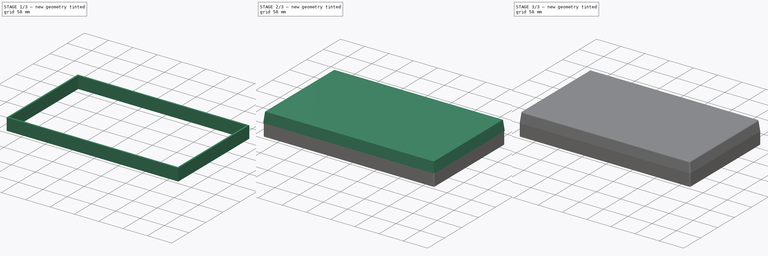
[diagram: build sequence overview — one tinted view per stage of 3, left to right]
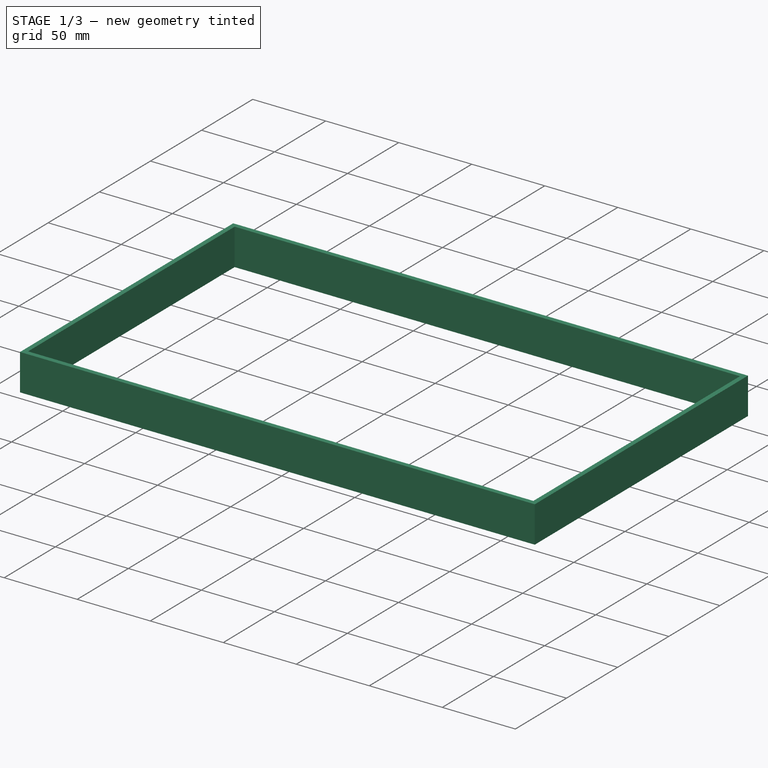
[diagram: stage 1 of 3 — iso view after this stage's code; geometry added in this stage tinted green]
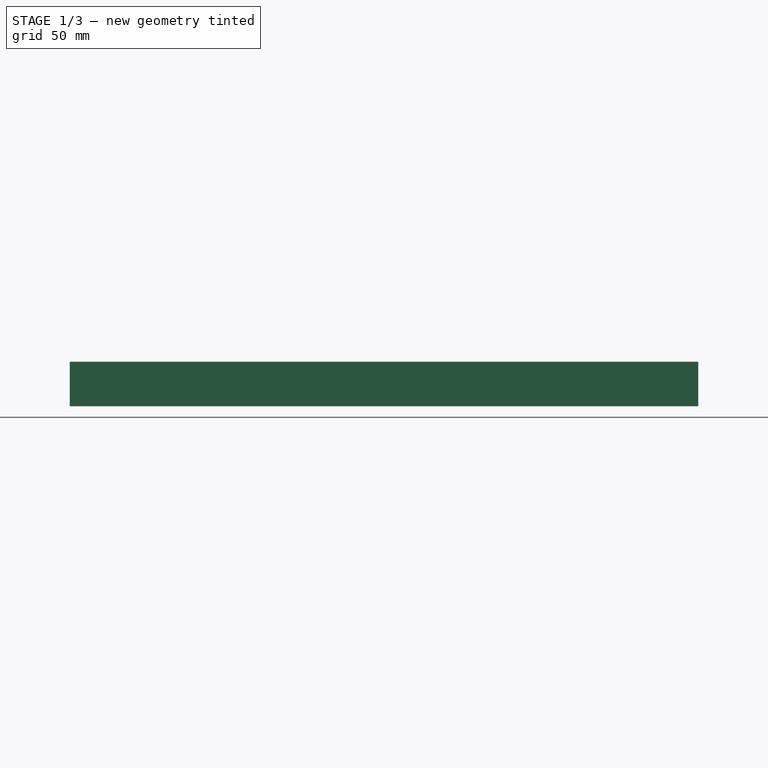
[diagram: stage 1 of 3 — front view after this stage's code; geometry added in this stage tinted green]
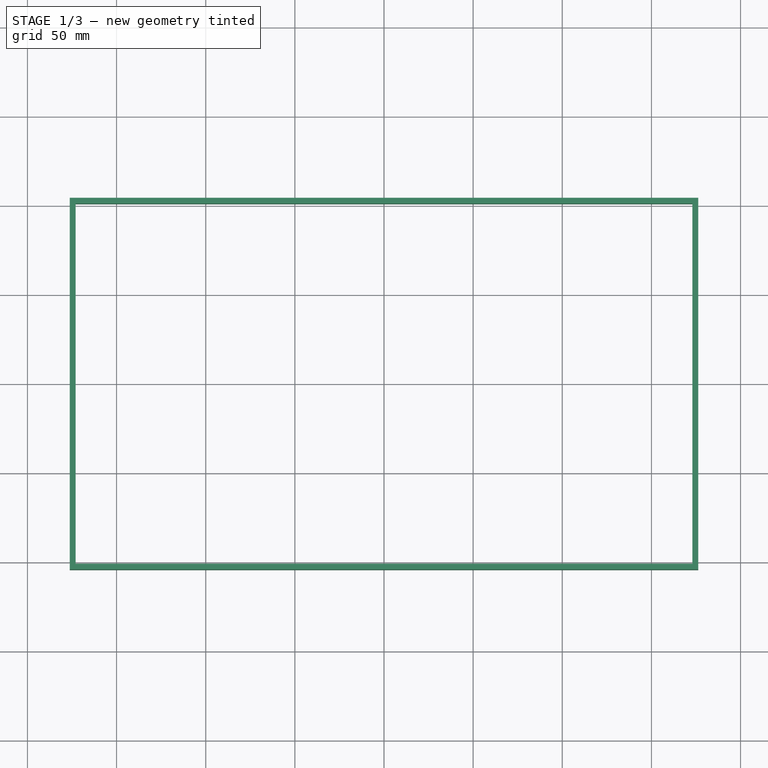
[diagram: stage 1 of 3 — top view after this stage's code; geometry added in this stage tinted green]
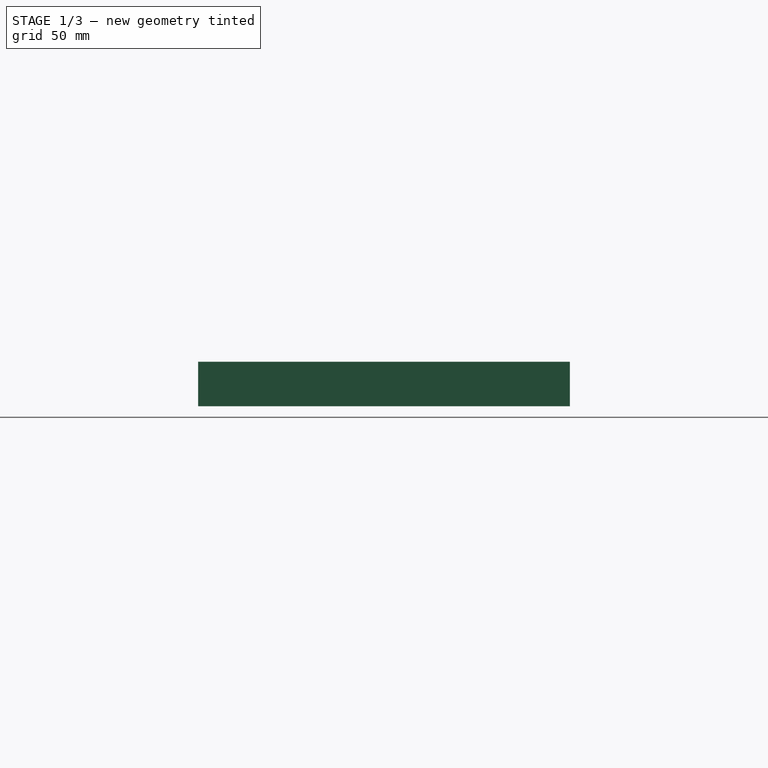
[diagram: stage 1 of 3 — right view after this stage's code; geometry added in this stage tinted green]
FCSTD DOCUMENT  (FreeCAD 0.21R33771 (Git))
Label: CaseTopNew
License: All rights reserved
LicenseURL: https://en.wikipedia.org/wiki/All_rights_reserved
objects: Sketcher::SketchObject×4, PartDesign::Fillet×2, PartDesign::Body×2, Part::Feature×1, PartDesign::FeatureBase×1, PartDesign::Pad×1, PartDesign::AdditiveLoft×1, PartDesign::Thickness×1, PartDesign::CoordinateSystem×1, App::Part×1
note: 19 computed .brp shape members not serialized (recipe doc carries the construction recipe); baked Part::Feature solids carry a one-line shape summary decoded from their .brp

FEATURE [Part::Feature] Part__Feature  label="StringerPads"
  shape: bbox 352.8 x 208.8 x 13 mm, 115 faces (baked)
FEATURE [PartDesign::FeatureBase] BaseFeature
  BaseFeature = -> Part__Feature
FEATURE [Sketcher::SketchObject] Sketch
  AttachmentOffset = pos=(0,0,6) rot=(0,0,1;0rad)
  ExternalGeometry = -> [BaseFeature]
  FullyConstrained = true
  MapMode = 5
  Placement = pos=(0,0,6) rot=(0,0,1;0rad)
  sketch-geometry (10):
    g0: LineSegment StartX=173 StartY=-101 StartZ=0 EndX=173 EndY=101 EndZ=0
    g1: LineSegment StartX=173 StartY=101 StartZ=0 EndX=-173 EndY=101 EndZ=0
    g2: LineSegment StartX=-173 StartY=101 StartZ=0 EndX=-173 EndY=-101 EndZ=0
    g3: LineSegment StartX=-173 StartY=-101 StartZ=0 EndX=173 EndY=-101 EndZ=0
    g4: GeomPoint X=0 Y=0 Z=0
    g5: LineSegment StartX=176.231 StartY=-104.231 StartZ=0 EndX=176.231 EndY=104.231 EndZ=0
    g6: LineSegment StartX=176.231 StartY=104.231 StartZ=0 EndX=-176.231 EndY=104.231 EndZ=0
    g7: LineSegment StartX=-176.231 StartY=104.231 StartZ=0 EndX=-176.231 EndY=-104.231 EndZ=0
    g8: LineSegment StartX=-176.231 StartY=-104.231 StartZ=0 EndX=176.231 EndY=-104.231 EndZ=0
    g9: GeomPoint X=0 Y=0 Z=0
  constraints (23):
    c: Coincident(g0,g1)
    c: Coincident(g1,g2)
    c: Coincident(g2,g3)
    c: Coincident(g3,g0)
    c: Horizontal(g1)
    c: Horizontal(g3)
    c: Vertical(g0)
    c: Vertical(g2)
    c: Symmetric(g1,g0,g4)
    c: Coincident(g4,g-1)
    c: Coincident(g1,g-5)
    c: Coincident(g5,g6)
    c: Coincident(g6,g7)
    c: Coincident(g7,g8)
    c: Coincident(g8,g5)
    c: Horizontal(g6)
    c: Horizontal(g8)
    c: Vertical(g5)
    c: Vertical(g7)
    c: Symmetric(g6,g5,g9)
    c: Coincident(g9,g4)
    c: PointOnObject(g-3,g6)
    c: PointOnObject(g-10,g7)
FEATURE [PartDesign::Pad] Pad
  Direction = (0,0,1)
  Length = 25
  Length2 = 10
  Placement = pos=(0,0,6) rot=(0,0,1;0rad)
  Profile = -> Sketch
  ReferenceAxis = -> Sketch [N_Axis]
  Refine = true
  Type = 0
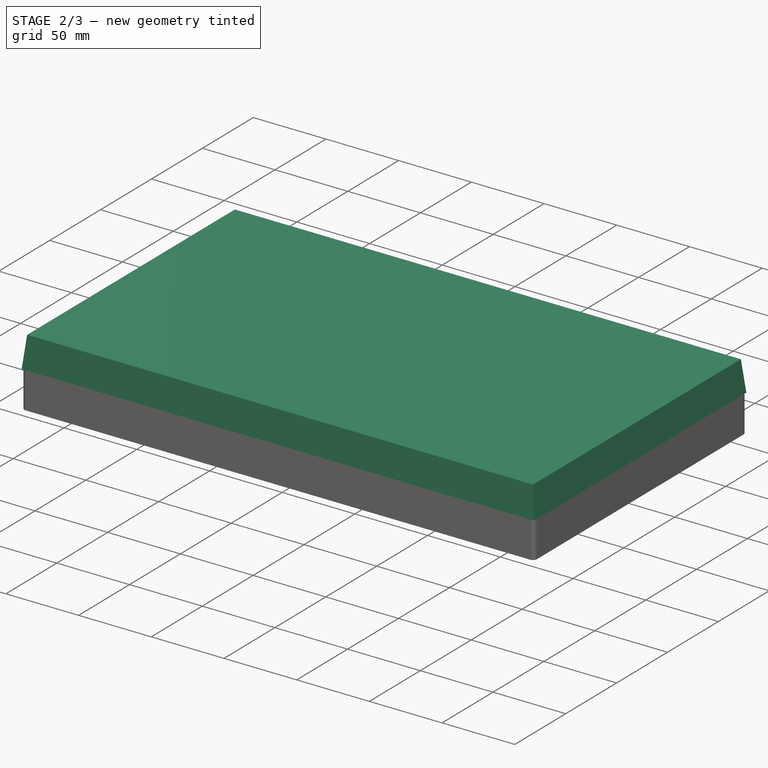
[diagram: stage 2 of 3 — iso view after this stage's code; geometry added in this stage tinted green]
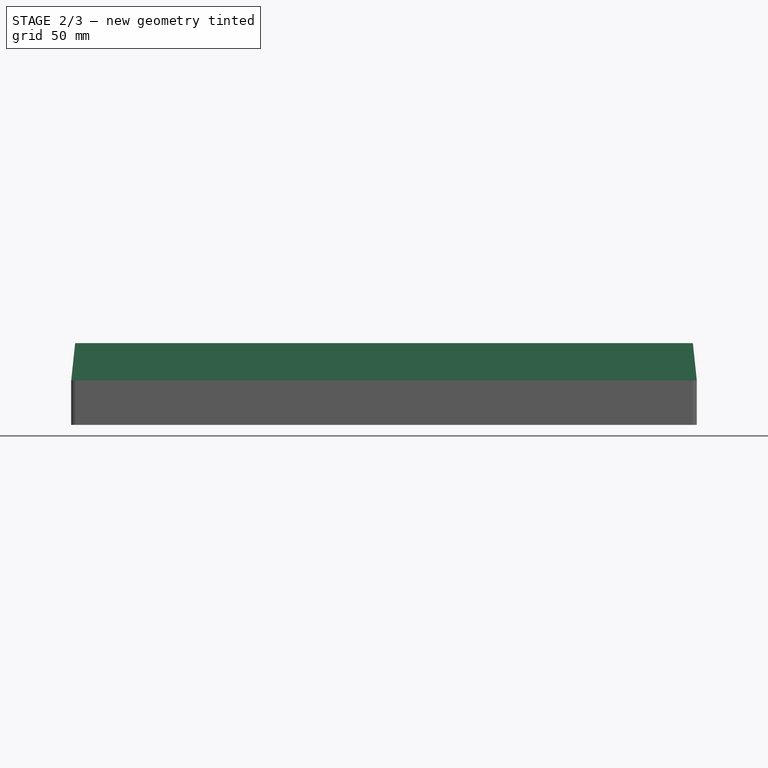
[diagram: stage 2 of 3 — front view after this stage's code; geometry added in this stage tinted green]
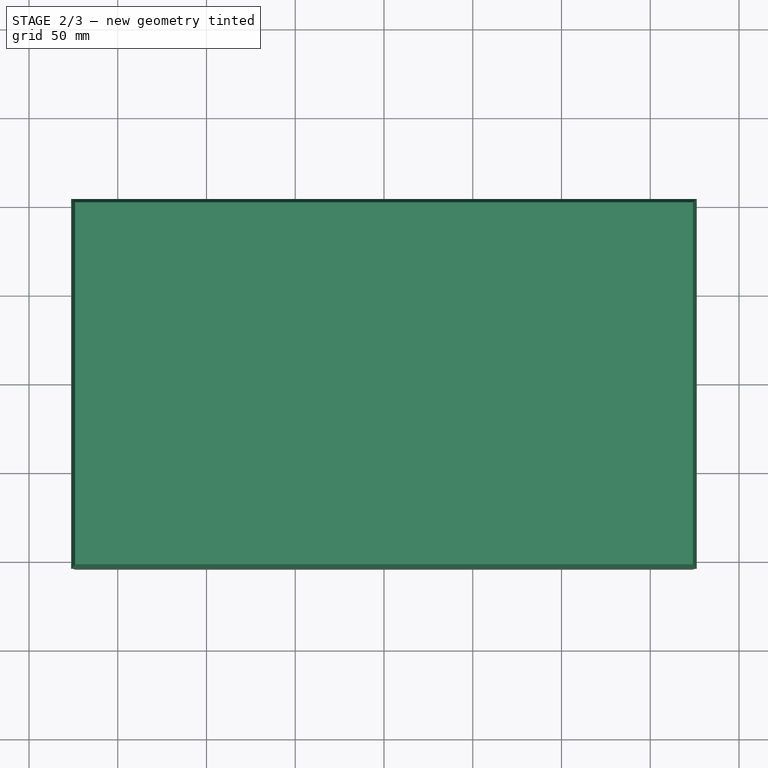
[diagram: stage 2 of 3 — top view after this stage's code; geometry added in this stage tinted green]
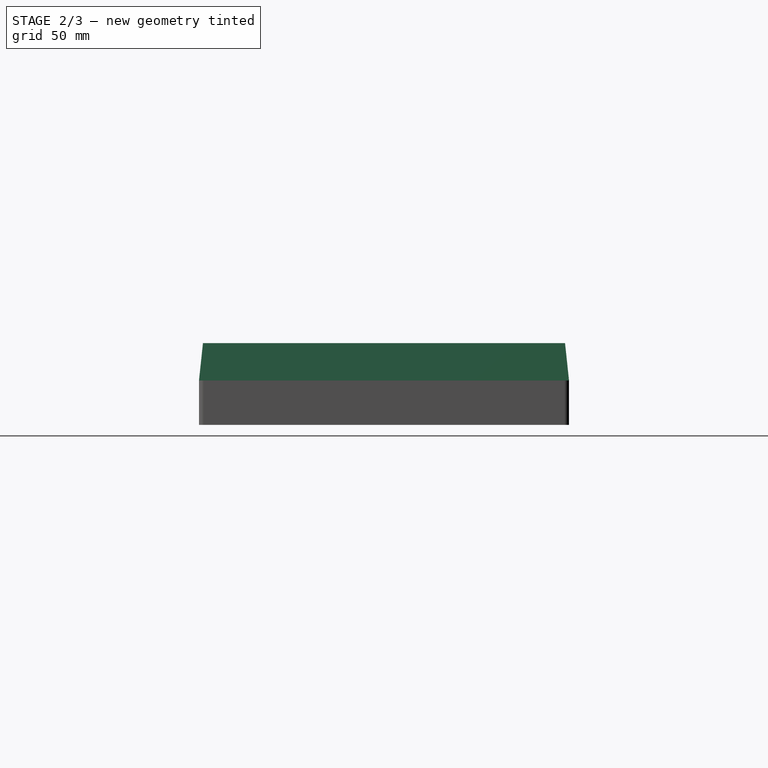
[diagram: stage 2 of 3 — right view after this stage's code; geometry added in this stage tinted green]
FEATURE [Sketcher::SketchObject] Sketch001
  AttachmentOffset = pos=(0,0,31) rot=(0,0,1;0rad)
  ExternalGeometry = -> [Sketch]
  FullyConstrained = true
  MapMode = 5
  Placement = pos=(0,0,31) rot=(0,0,1;0rad)
  Support = -> [XY_Plane001]
  sketch-geometry (5):
    g0: LineSegment StartX=-176.231 StartY=104.231 StartZ=0 EndX=-176.231 EndY=-104.231 EndZ=0
    g1: LineSegment StartX=-176.231 StartY=-104.231 StartZ=0 EndX=176.231 EndY=-104.231 EndZ=0
    g2: LineSegment StartX=176.231 StartY=-104.231 StartZ=0 EndX=176.231 EndY=104.231 EndZ=0
    g3: LineSegment StartX=176.231 StartY=104.231 StartZ=0 EndX=-176.231 EndY=104.231 EndZ=0
    g4: GeomPoint X=0 Y=0 Z=0
  constraints (11):
    c: Coincident(g0,g1)
    c: Coincident(g1,g2)
    c: Coincident(g2,g3)
    c: Coincident(g3,g0)
    c: Horizontal(g1)
    c: Horizontal(g3)
    c: Vertical(g0)
    c: Vertical(g2)
    c: Symmetric(g1,g0,g4)
    c: Coincident(g4,g-1)
    c: Coincident(g1,g-6)
FEATURE [Sketcher::SketchObject] Sketch002
  AttachmentOffset = pos=(0,0,52) rot=(0,0,1;0rad)
  FullyConstrained = true
  MapMode = 5
  Placement = pos=(0,0,52) rot=(0,0,1;0rad)
  Support = -> [XY_Plane001]
  sketch-geometry (5):
    g0: LineSegment StartX=174 StartY=-102 StartZ=0 EndX=174 EndY=102 EndZ=0
    g1: LineSegment StartX=174 StartY=102 StartZ=0 EndX=-174 EndY=102 EndZ=0
    g2: LineSegment StartX=-174 StartY=102 StartZ=0 EndX=-174 EndY=-102 EndZ=0
    g3: LineSegment StartX=-174 StartY=-102 StartZ=0 EndX=174 EndY=-102 EndZ=0
    g4: GeomPoint X=0 Y=0 Z=0
  constraints (11):
    c: Coincident(g0,g1)
    c: Coincident(g1,g2)
    c: Coincident(g2,g3)
    c: Coincident(g3,g0)
    c: Horizontal(g1)
    c: Horizontal(g3)
    c: Vertical(g0)
    c: Vertical(g2)
    c: Symmetric(g1,g0,g4)
    c: Coincident(g4,g-1)
    c: Block(g3)
FEATURE [PartDesign::AdditiveLoft] AdditiveLoft
  Closed = false
  Profile = -> Sketch002
  Refine = true
  Ruled = false
  Sections = -> [Sketch001]
FEATURE [PartDesign::Body] Body  label="Top"
  Group = -> [Sketch002,Sketch001,AdditiveLoft,Thickness,Fillet]
  Origin = -> Origin001
  Tip = -> Fillet
FEATURE [PartDesign::Fillet] Fillet001
  Base = -> Pad [Edge8,Edge1,Edge5,Edge2]
  BaseFeature = -> Pad
  Placement = pos=(0,0,6) rot=(0,0,1;0rad)
  Radius = 2.7
  Refine = true
  SupportTransform = false
  UseAllEdges = false
FEATURE [PartDesign::CoordinateSystem] Local_CS  label="FloppyLCS"
  AttacherType = Attacher::AttachEngine3D
  AttachmentOffset = pos=(104,29,-4) rot=(0,0,1;0rad)
  MapMode = 5
  Placement = pos=(104,-100.231,35) rot=(1,0,0;1.5708rad)
  Support = -> [Fillet001]
FEATURE [Sketcher::SketchObject] Sketch003
  FullyConstrained = true
  MapMode = 5
  Placement = pos=(0,-104.231,6) rot=(1,0,0;1.5708rad)
  Support = -> [Fillet001]
  sketch-geometry (5):
    g0: LineSegment StartX=53.5 StartY=42 StartZ=0 EndX=53.5 EndY=16 EndZ=0
    g1: LineSegment StartX=53.5 StartY=16 StartZ=0 EndX=154.5 EndY=16 EndZ=0
    g2: LineSegment StartX=154.5 StartY=16 StartZ=0 EndX=154.5 EndY=42 EndZ=0
    g3: LineSegment StartX=154.5 StartY=42 StartZ=0 EndX=53.5 EndY=42 EndZ=0
    g4: GeomPoint X=104 Y=29 Z=0
  constraints (12):
    c: Coincident(g0,g1)
    c: Coincident(g1,g2)
    c: Coincident(g2,g3)
    c: Coincident(g3,g0)
    c: Horizontal(g1)
    c: Horizontal(g3)
    c: Vertical(g0)
    c: Vertical(g2)
    c: Symmetric(g1,g0,g4)
    c: DistanceX(g3,g3) = 101
    c: DistanceY(g2,g2) = 26
    c: Block(g3)
FEATURE [PartDesign::Body] Body001  label="Mid"
  Group = -> [Pad,Sketch,Fillet001,Local_CS,Sketch003]
  Origin = -> Origin002
  Tip = -> Fillet001
FEATURE [App::Part] Part
  Group = -> [Body,Body001]
  Origin = -> Origin
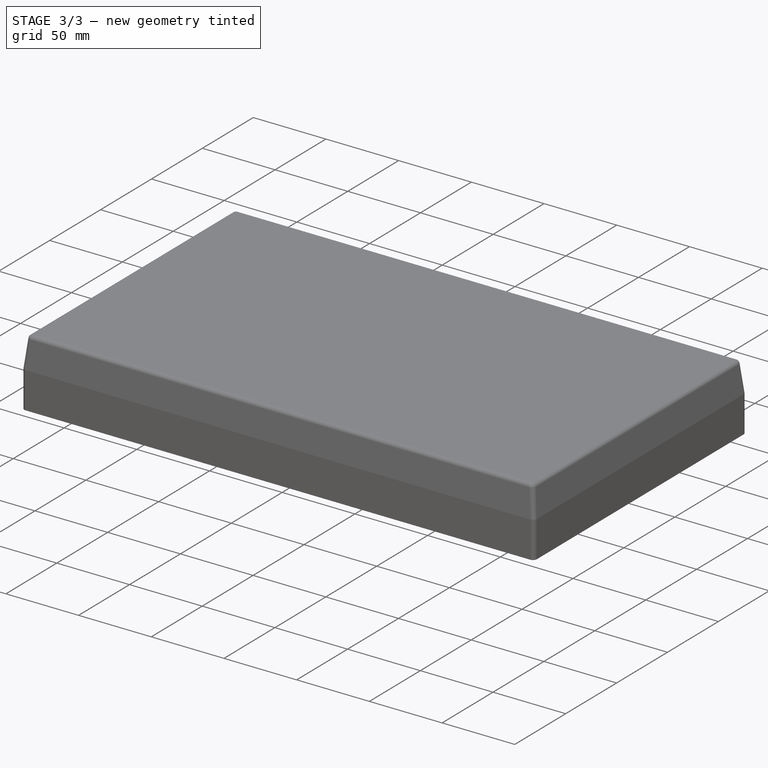
[diagram: stage 3 of 3 — iso view after this stage's code; geometry added in this stage tinted green]
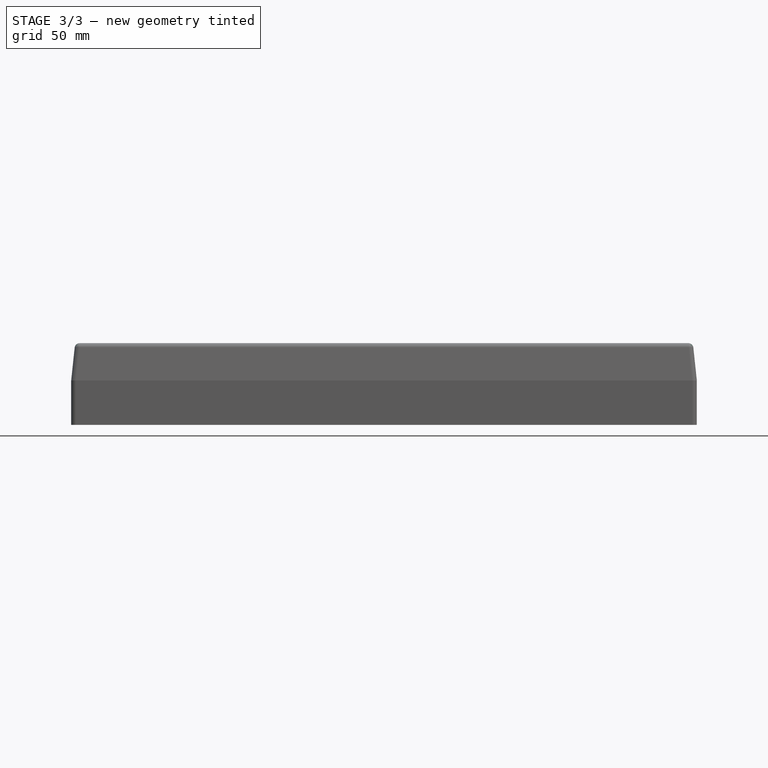
[diagram: stage 3 of 3 — front view after this stage's code; geometry added in this stage tinted green]
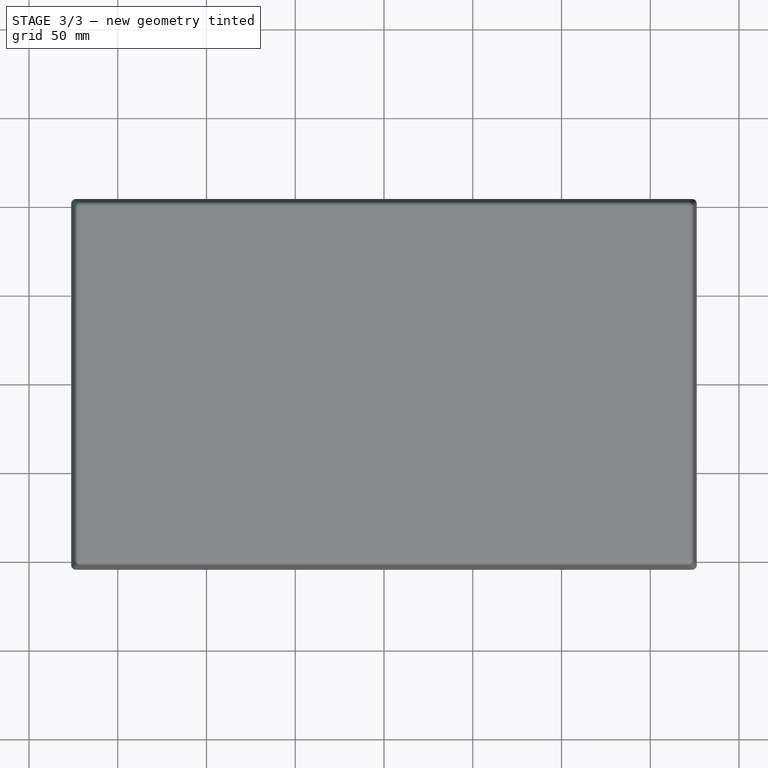
[diagram: stage 3 of 3 — top view after this stage's code; geometry added in this stage tinted green]
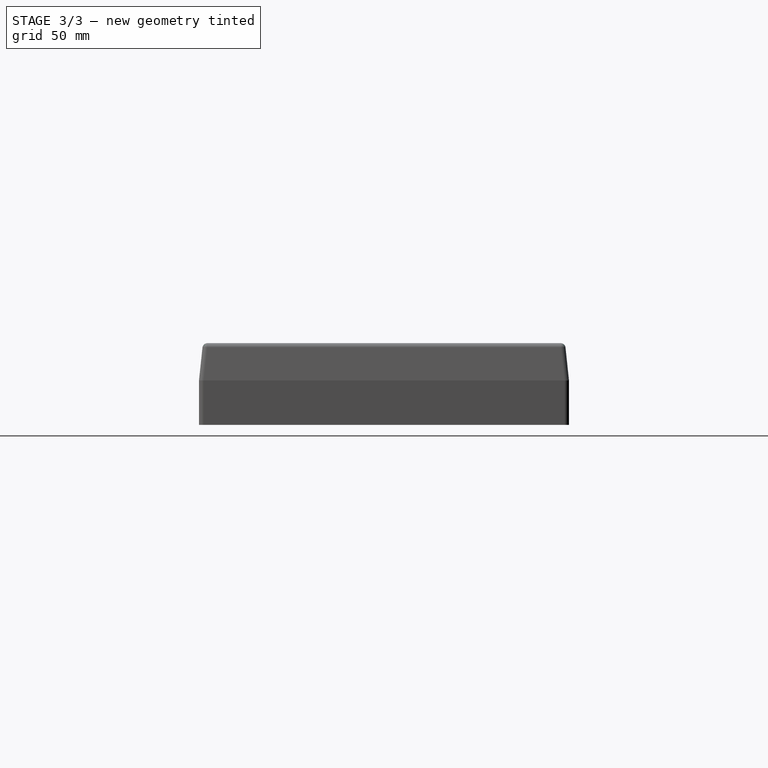
[diagram: stage 3 of 3 — right view after this stage's code; geometry added in this stage tinted green]
FEATURE [PartDesign::Thickness] Thickness
  Base = -> AdditiveLoft [Face3]
  BaseFeature = -> AdditiveLoft
  Intersection = true
  Join = 1
  Mode = 0
  Refine = true
  Reversed = true
  SupportTransform = false
  Value = 3
FEATURE [PartDesign::Fillet] Fillet
  Base = -> Thickness [Edge10,Edge4,Edge3,Edge2,Edge7,Edge1,Edge5,Edge8]
  BaseFeature = -> Thickness
  Radius = 2.7
  Refine = true
  SupportTransform = false
  UseAllEdges = false
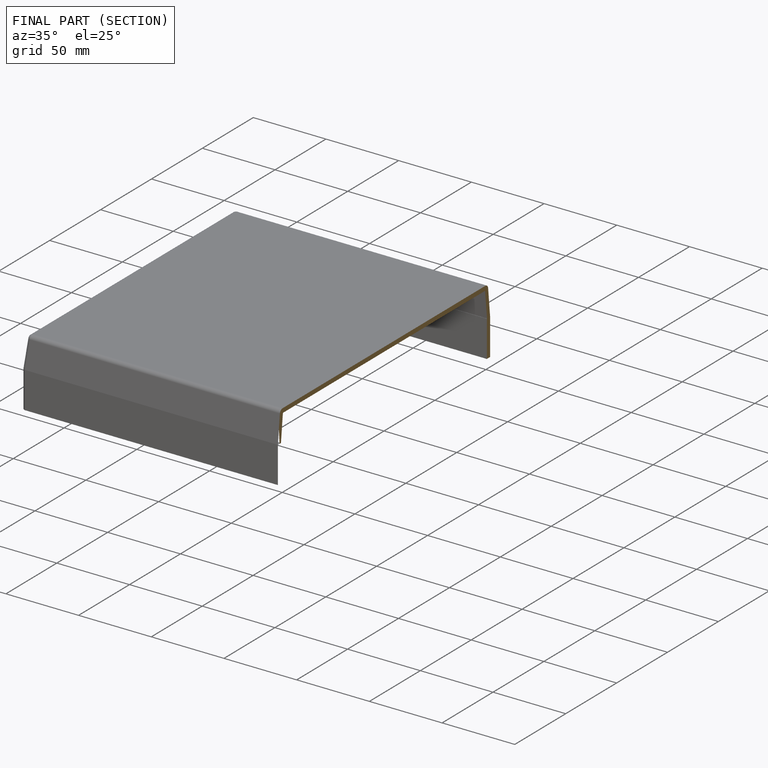
[diagram: finished part — half-section view (interior)]
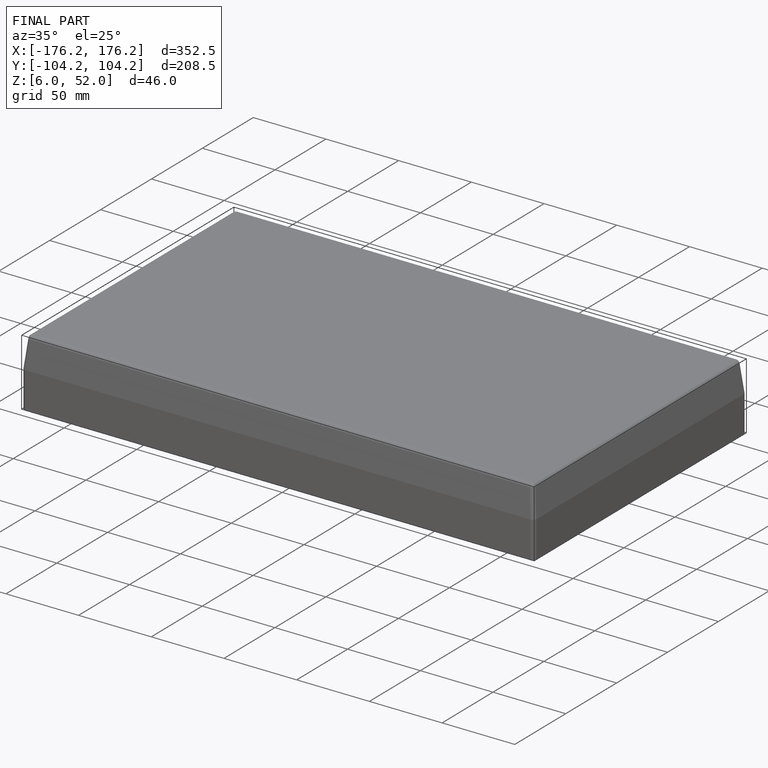
[diagram: finished part — iso view with bounding-box wireframe]
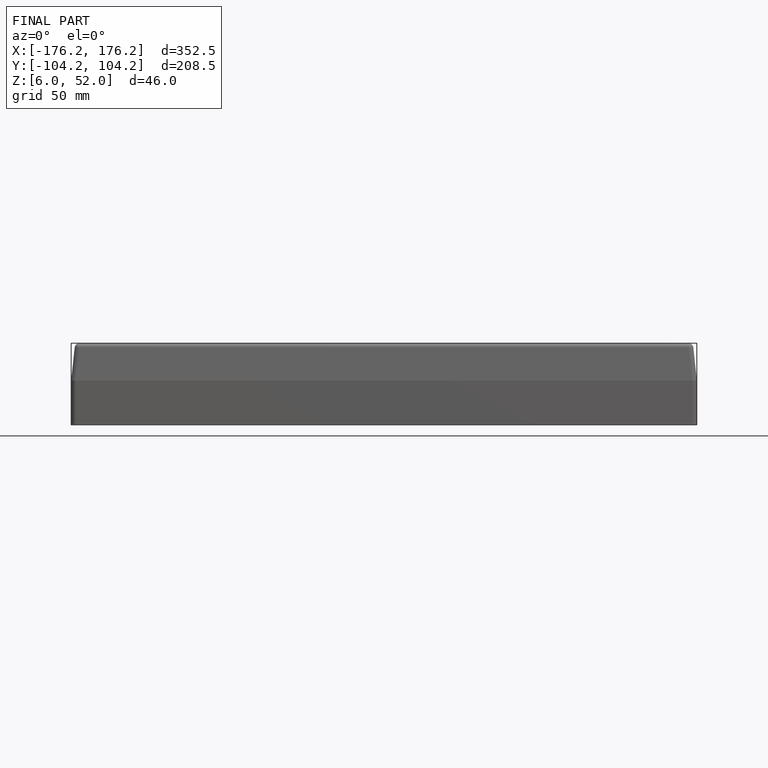
[diagram: finished part — front view with bounding-box wireframe]
